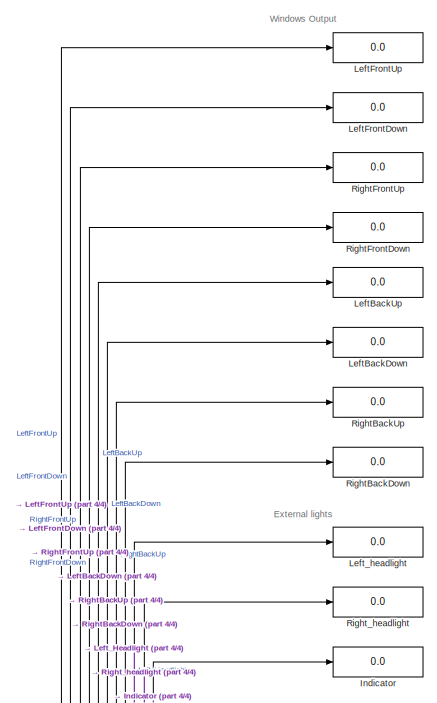
[diagram: root canvas - part 1/4, top right region]
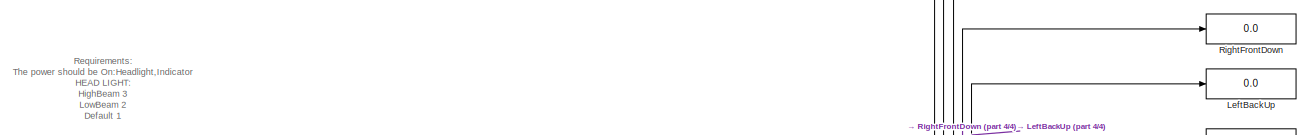
[diagram: root canvas - part 2/4, full width, top band]
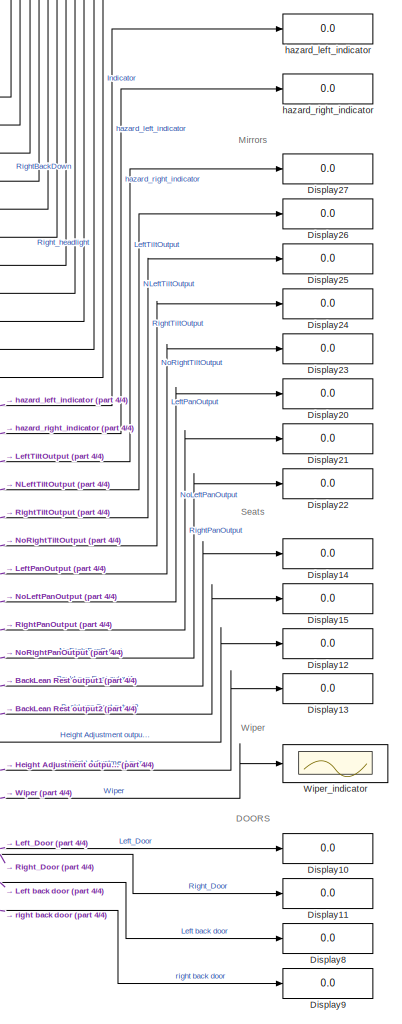
[diagram: root canvas - part 3/4, bottom right region]
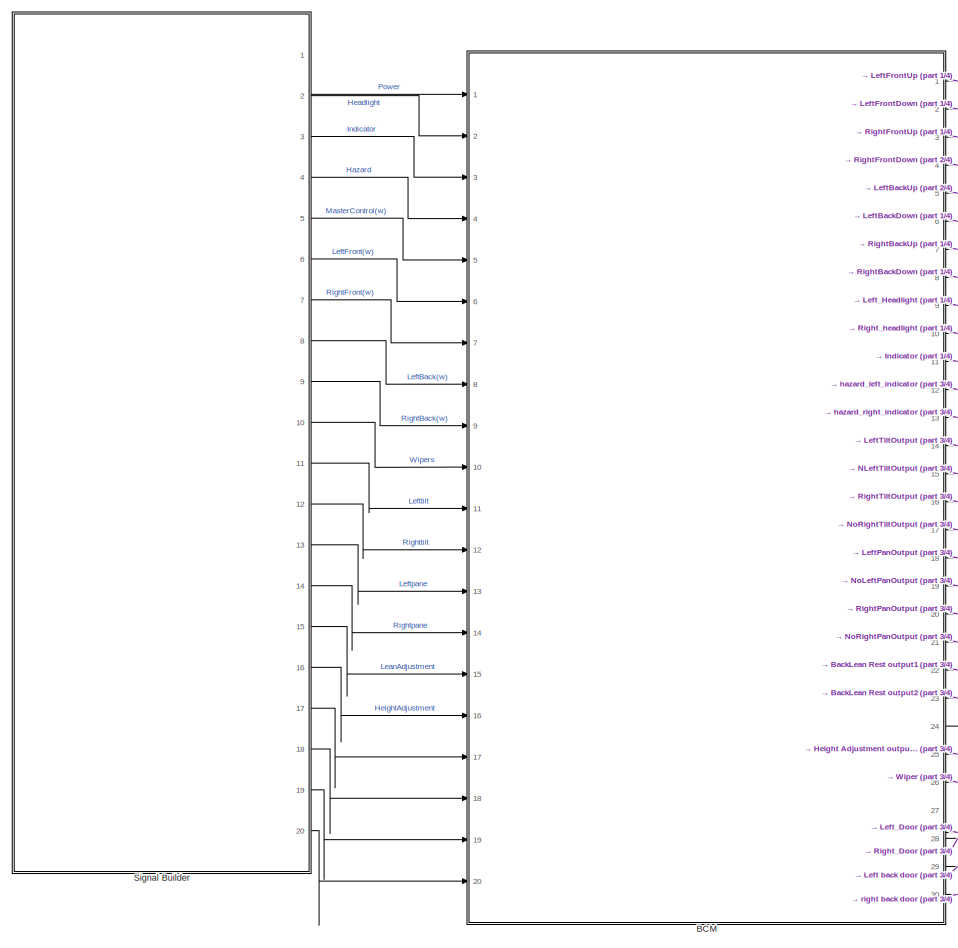
[diagram: root canvas - part 4/4, bottom center region]
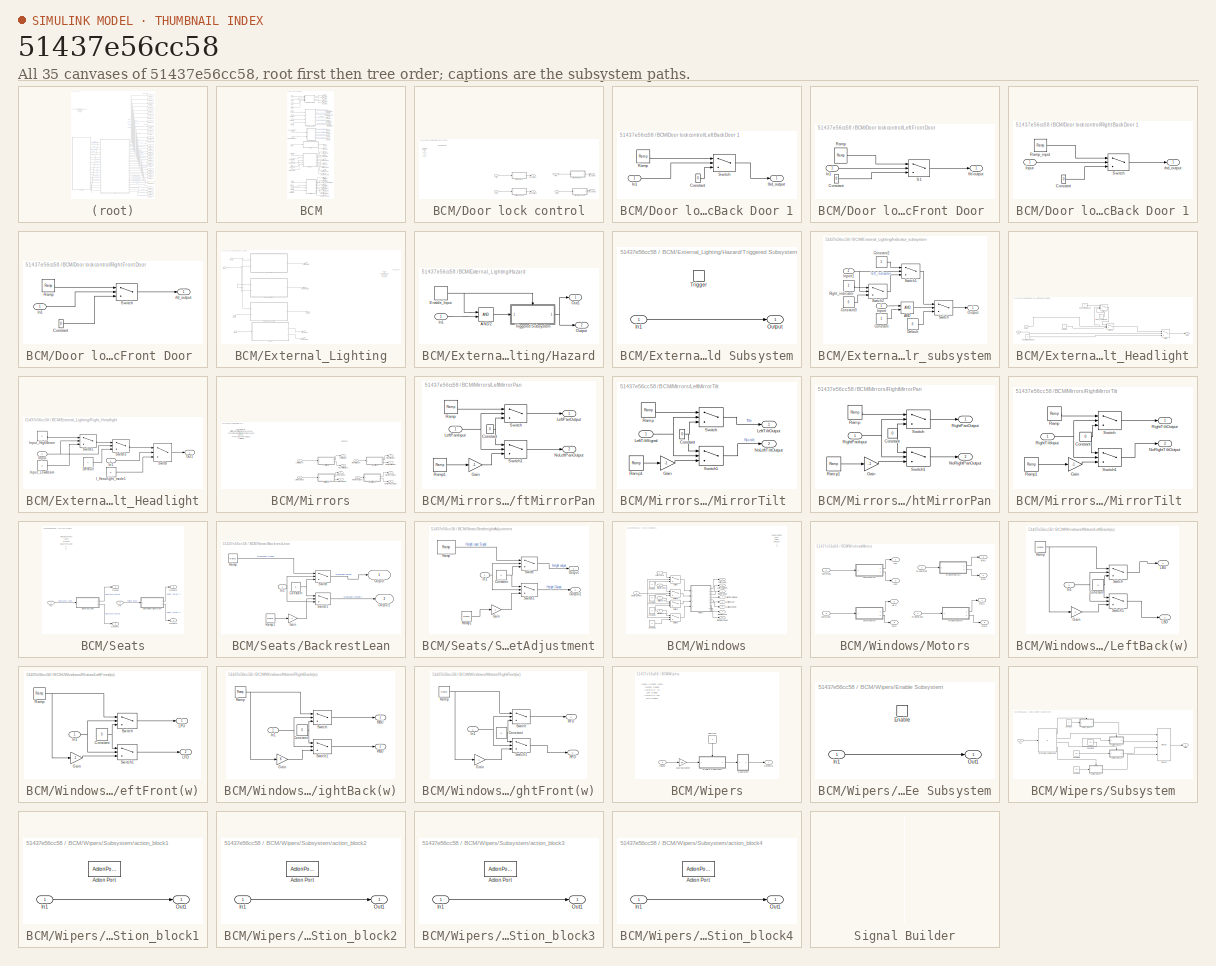
[diagram: thumbnail index - all 35 canvases of the model, root first then tree order]
MODEL slx_51437e56cc58
KIND model
CONFIG AbsTol = auto
CONFIG EnableMultiTasking = off
CONFIG FixedStep = auto
CONFIG MaxStep = auto
CONFIG MinStep = auto
CONFIG RelTol = 1e-3
CONFIG SampleTimeConstraint = Unconstrained
CONFIG Solver = VariableStepAuto
CONFIG SolverName = VariableStepAuto
CONFIG StartTime = 0.0
CONFIG StopTime = 4.0
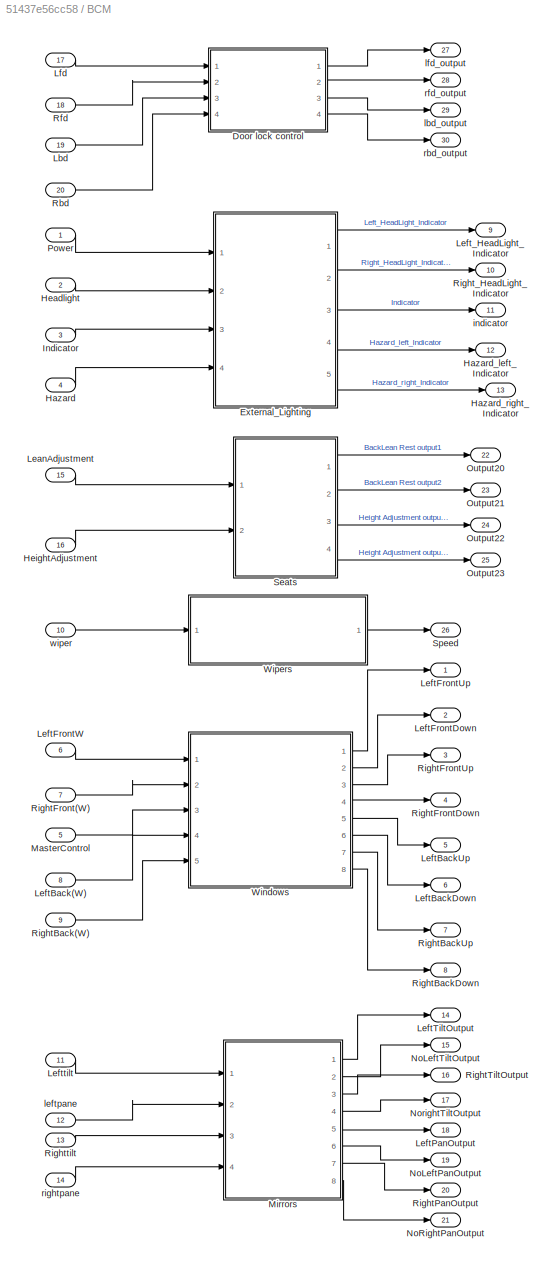
BLOCK [SubSystem] BCM
  Ports = [20, 30]
  RequestExecContextInheritance = off
BLOCK [SubSystem] BCM/Door lock control
  Ports = [4, 4]
  RequestExecContextInheritance = off
BLOCK [Inport] BCM/Door lock control/Lbd
  Port = 3
BLOCK [SubSystem] BCM/Door lock control/Left Back Door 1
  Ports = [1, 1]
  RequestExecContextInheritance = off
BLOCK [Constant] BCM/Door lock control/Left Back Door 1/Constant
  Value = 0
BLOCK [Inport] BCM/Door lock control/Left Back Door 1/In1
BLOCK [Reference] BCM/Door lock control/Left Back Door 1/Ramp  REF=simulink/Sources/Ramp
  Ports = [0, 1]
  SourceBlock = simulink/Sources/Ramp
  SourceProductBaseCode = SL
  SourceType = Ramp
BLOCK [Switch] BCM/Door lock control/Left Back Door 1/Switch
  Criteria = u2 > Threshold
  InputSameDT = off
  SaturateOnIntegerOverflow = off
BLOCK [Outport] BCM/Door lock control/Left Back Door 1/lbd_output
BLOCK [SubSystem] BCM/Door lock control/Left Front Door 
  Ports = [1, 1]
  RequestExecContextInheritance = off
BLOCK [Constant] BCM/Door lock control/Left Front Door /Constant
  Value = 0
BLOCK [Inport] BCM/Door lock control/Left Front Door /In1
BLOCK [Reference] BCM/Door lock control/Left Front Door /Ramp  REF=simulink/Sources/Ramp
  Ports = [0, 1]
  SourceBlock = simulink/Sources/Ramp
  SourceProductBaseCode = SL
  SourceType = Ramp
BLOCK [Switch] BCM/Door lock control/Left Front Door /S1
  Criteria = u2 > Threshold
  InputSameDT = off
  SaturateOnIntegerOverflow = off
BLOCK [Outport] BCM/Door lock control/Left Front Door /lfd output
BLOCK [Inport] BCM/Door lock control/Lfd
BLOCK [Inport] BCM/Door lock control/Rbd
  Port = 4
BLOCK [Inport] BCM/Door lock control/Rfd
  Port = 2
BLOCK [SubSystem] BCM/Door lock control/Right Back Door 1
  Ports = [1, 1]
  RequestExecContextInheritance = off
BLOCK [Constant] BCM/Door lock control/Right Back Door 1/Constant
  Value = 0
BLOCK [Inport] BCM/Door lock control/Right Back Door 1/Input
BLOCK [Reference] BCM/Door lock control/Right Back Door 1/Ramp_input  REF=simulink/Sources/Ramp
  Ports = [0, 1]
  SourceBlock = simulink/Sources/Ramp
  SourceProductBaseCode = SL
  SourceType = Ramp
BLOCK [Switch] BCM/Door lock control/Right Back Door 1/Switch
  Criteria = u2 > Threshold
  InputSameDT = off
  SaturateOnIntegerOverflow = off
BLOCK [Outport] BCM/Door lock control/Right Back Door 1/rbd_output
BLOCK [SubSystem] BCM/Door lock control/Right Front Door 
  Ports = [1, 1]
  RequestExecContextInheritance = off
BLOCK [Constant] BCM/Door lock control/Right Front Door /Constant
  Value = 0
BLOCK [Inport] BCM/Door lock control/Right Front Door /In1
BLOCK [Reference] BCM/Door lock control/Right Front Door /Ramp  REF=simulink/Sources/Ramp
  Ports = [0, 1]
  SourceBlock = simulink/Sources/Ramp
  SourceProductBaseCode = SL
  SourceType = Ramp
BLOCK [Switch] BCM/Door lock control/Right Front Door /Switch
  Criteria = u2 > Threshold
  InputSameDT = off
  SaturateOnIntegerOverflow = off
BLOCK [Outport] BCM/Door lock control/Right Front Door /rfd_output
BLOCK [Outport] BCM/Door lock control/lbd_output
  Port = 3
BLOCK [Outport] BCM/Door lock control/lfd_output
BLOCK [Outport] BCM/Door lock control/rbd_output
  Port = 4
BLOCK [Outport] BCM/Door lock control/rfd_output
  Port = 2
BLOCK [SubSystem] BCM/External_Lighting
  Ports = [4, 5]
  RequestExecContextInheritance = off
BLOCK [SubSystem] BCM/External_Lighting/Hazard
  Ports = [1, 2]
  RequestExecContextInheritance = off
BLOCK [Logic] BCM/External_Lighting/Hazard/AND2
  AllPortsSameDT = off
  IconShape = distinctive
  OutDataTypeStr = boolean
  Ports = [2, 1]
BLOCK [DiscretePulseGenerator] BCM/External_Lighting/Hazard/Enable_Input
  Period = 1
  Ports = [0, 1]
  PulseType = Time based
  PulseWidth = 50
BLOCK [Inport] BCM/External_Lighting/Hazard/In1
BLOCK [Outport] BCM/External_Lighting/Hazard/Out1
  VectorParamsAs1DForOutWhenUnconnected = off
BLOCK [Outport] BCM/External_Lighting/Hazard/Output
  Port = 2
BLOCK [SubSystem] BCM/External_Lighting/Hazard/Triggered Subsystem
  Ports = [1, 1, 0, 1]
  RequestExecContextInheritance = off
  TreatAsAtomicUnit = on
BLOCK [Inport] BCM/External_Lighting/Hazard/Triggered Subsystem/In1
BLOCK [Outport] BCM/External_Lighting/Hazard/Triggered Subsystem/Output
BLOCK [TriggerPort] BCM/External_Lighting/Hazard/Triggered Subsystem/Trigger
  Ports = []
  StatesWhenEnabling = held
  TriggerType = either
  VariantControl = Variant
BLOCK [Outport] BCM/External_Lighting/Hazard_Right
  Port = 5
BLOCK [Outport] BCM/External_Lighting/Indicator
  Port = 3
  VectorParamsAs1DForOutWhenUnconnected = off
BLOCK [SubSystem] BCM/External_Lighting/Indicator_subsystem
  Ports = [2, 1]
  RequestExecContextInheritance = off
BLOCK [Logic] BCM/External_Lighting/Indicator_subsystem/AND
  AllPortsSameDT = off
  IconShape = distinctive
  OutDataTypeStr = boolean
  Ports = [2, 1]
BLOCK [Constant] BCM/External_Lighting/Indicator_subsystem/Constant
BLOCK [Constant] BCM/External_Lighting/Indicator_subsystem/Constant2
  Value = 5
BLOCK [Constant] BCM/External_Lighting/Indicator_subsystem/Constant3
  Value = 0
BLOCK [Constant] BCM/External_Lighting/Indicator_subsystem/Default
  Value = 0
BLOCK [Inport] BCM/External_Lighting/Indicator_subsystem/Inport
BLOCK [Inport] BCM/External_Lighting/Indicator_subsystem/Inport1
  Port = 2
BLOCK [Outport] BCM/External_Lighting/Indicator_subsystem/Output
  VectorParamsAs1DForOutWhenUnconnected = off
BLOCK [Constant] BCM/External_Lighting/Indicator_subsystem/Right_indicator
  Value = 3
BLOCK [Switch] BCM/External_Lighting/Indicator_subsystem/Switch
  Criteria = u2 > Threshold
  InputSameDT = off
  SaturateOnIntegerOverflow = off
BLOCK [Switch] BCM/External_Lighting/Indicator_subsystem/Switch1
  Criteria = u2 > Threshold
  InputSameDT = off
  SaturateOnIntegerOverflow = off
  Threshold = 4
BLOCK [Switch] BCM/External_Lighting/Indicator_subsystem/Switch2
  Criteria = u2 > Threshold
  InputSameDT = off
  SaturateOnIntegerOverflow = off
  Threshold = 2
BLOCK [Inport] BCM/External_Lighting/Input
  Port = 2
BLOCK [Inport] BCM/External_Lighting/Input1
BLOCK [Inport] BCM/External_Lighting/Input3
  Port = 3
BLOCK [Inport] BCM/External_Lighting/Input4
  Port = 4
BLOCK [Outport] BCM/External_Lighting/Left-Headlight
  VectorParamsAs1DForOutWhenUnconnected = off
BLOCK [SubSystem] BCM/External_Lighting/Left_Headlight
  Ports = [2, 1]
  RequestExecContextInheritance = off
BLOCK [Constant] BCM/External_Lighting/Left_Headlight/Deafult
BLOCK [Constant] BCM/External_Lighting/Left_Headlight/I_Headlight_mode1
  Value = 0
BLOCK [Inport] BCM/External_Lighting/Left_Headlight/In1
BLOCK [Inport] BCM/External_Lighting/Left_Headlight/Input
  Port = 2
BLOCK [Constant] BCM/External_Lighting/Left_Headlight/Input_HighBeam
  Value = 3
BLOCK [Constant] BCM/External_Lighting/Left_Headlight/Input_LowBeam
  Value = 2
BLOCK [Outport] BCM/External_Lighting/Left_Headlight/Out1
  VectorParamsAs1DForOutWhenUnconnected = off
BLOCK [Switch] BCM/External_Lighting/Left_Headlight/Switch
  Criteria = u2 > Threshold
  InputSameDT = off
  SaturateOnIntegerOverflow = off
BLOCK [Switch] BCM/External_Lighting/Left_Headlight/Switch1
  Criteria = u2 > Threshold
  InputSameDT = off
  SaturateOnIntegerOverflow = off
  Threshold = 2
BLOCK [Switch] BCM/External_Lighting/Left_Headlight/Switch3
  Criteria = u2 > Threshold
  InputSameDT = off
  SaturateOnIntegerOverflow = off
  Threshold = 1
BLOCK [Outport] BCM/External_Lighting/Right-Headlight
  Port = 2
  VectorParamsAs1DForOutWhenUnconnected = off
BLOCK [SubSystem] BCM/External_Lighting/Right_Headlight
  Ports = [2, 1]
  RequestExecContextInheritance = off
BLOCK [Constant] BCM/External_Lighting/Right_Headlight/Default
BLOCK [Constant] BCM/External_Lighting/Right_Headlight/I_Headlight_mode1
  Value = 0
BLOCK [Inport] BCM/External_Lighting/Right_Headlight/In1
BLOCK [Inport] BCM/External_Lighting/Right_Headlight/Input
  Port = 2
BLOCK [Constant] BCM/External_Lighting/Right_Headlight/Input_HighBeam
  Value = 3
BLOCK [Constant] BCM/External_Lighting/Right_Headlight/Input_LowBeam
  Value = 2
BLOCK [Outport] BCM/External_Lighting/Right_Headlight/Out1
  VectorParamsAs1DForOutWhenUnconnected = off
BLOCK [Switch] BCM/External_Lighting/Right_Headlight/Switch
  Criteria = u2 > Threshold
  InputSameDT = off
  SaturateOnIntegerOverflow = off
BLOCK [Switch] BCM/External_Lighting/Right_Headlight/Switch1
  Criteria = u2 > Threshold
  InputSameDT = off
  SaturateOnIntegerOverflow = off
  Threshold = 2
BLOCK [Switch] BCM/External_Lighting/Right_Headlight/Switch3
  Criteria = u2 > Threshold
  InputSameDT = off
  SaturateOnIntegerOverflow = off
  Threshold = 1
BLOCK [Outport] BCM/External_Lighting/hazard_left
  Port = 4
  VectorParamsAs1DForOutWhenUnconnected = off
BLOCK [Inport] BCM/Hazard
  Port = 4
BLOCK [Outport] BCM/Hazard_left_Indicator
  Port = 12
BLOCK [Outport] BCM/Hazard_right_Indicator
  Port = 13
BLOCK [Inport] BCM/Headlight
  Port = 2
BLOCK [Inport] BCM/HeightAdjustment
  Port = 16
BLOCK [Inport] BCM/Indicator
  Port = 3
BLOCK [Inport] BCM/Lbd
  Port = 19
BLOCK [Inport] BCM/LeanAdjustment
  Port = 15
BLOCK [Inport] BCM/LeftBack(W)
  Port = 8
BLOCK [Outport] BCM/LeftBackDown
  Port = 6
BLOCK [Outport] BCM/LeftBackUp
  Port = 5
BLOCK [Outport] BCM/LeftFrontDown
  Port = 2
BLOCK [Outport] BCM/LeftFrontUp
BLOCK [Inport] BCM/LeftFrontW
  Port = 6
BLOCK [Outport] BCM/LeftPanOutput
  Port = 18
BLOCK [Outport] BCM/LeftTiltOutput
  Port = 14
BLOCK [Outport] BCM/Left_HeadLight_Indicator
  Port = 9
BLOCK [Inport] BCM/Lefttilt
  Port = 11
BLOCK [Inport] BCM/Lfd
  Port = 17
BLOCK [Inport] BCM/MasterControl
  Port = 5
BLOCK [SubSystem] BCM/Mirrors
  Ports = [4, 8]
  RequestExecContextInheritance = off
BLOCK [SubSystem] BCM/Mirrors/LeftMirrorPan
  Ports = [1, 2]
  RequestExecContextInheritance = off
BLOCK [Constant] BCM/Mirrors/LeftMirrorPan/Constant
  Value = 0
BLOCK [Gain] BCM/Mirrors/LeftMirrorPan/Gain
  Gain = -1
BLOCK [Inport] BCM/Mirrors/LeftMirrorPan/LeftPanInput
BLOCK [Outport] BCM/Mirrors/LeftMirrorPan/LeftPanOutput
BLOCK [Outport] BCM/Mirrors/LeftMirrorPan/NoLeftPanOutput
  Port = 2
BLOCK [Reference] BCM/Mirrors/LeftMirrorPan/Ramp  REF=simulink/Sources/Ramp
  Ports = [0, 1]
  SourceBlock = simulink/Sources/Ramp
  SourceProductBaseCode = SL
  SourceType = Ramp
BLOCK [Reference] BCM/Mirrors/LeftMirrorPan/Ramp1  REF=simulink/Sources/Ramp
  Ports = [0, 1]
  SourceBlock = simulink/Sources/Ramp
  SourceProductBaseCode = SL
  SourceType = Ramp
BLOCK [Switch] BCM/Mirrors/LeftMirrorPan/Switch
  Criteria = u2 > Threshold
  InputSameDT = off
  SaturateOnIntegerOverflow = off
BLOCK [Switch] BCM/Mirrors/LeftMirrorPan/Switch1
  InputSameDT = off
  SaturateOnIntegerOverflow = off
BLOCK [SubSystem] BCM/Mirrors/LeftMirrorTilt 
  Ports = [1, 2]
  RequestExecContextInheritance = off
BLOCK [Constant] BCM/Mirrors/LeftMirrorTilt /Constant
  Value = 0
BLOCK [Gain] BCM/Mirrors/LeftMirrorTilt /Gain
  Gain = -1
BLOCK [Outport] BCM/Mirrors/LeftMirrorTilt /LeftTiltOutput
BLOCK [Inport] BCM/Mirrors/LeftMirrorTilt /LeftTiltSignal
BLOCK [Outport] BCM/Mirrors/LeftMirrorTilt /NoLeftTiltOutput
  Port = 2
BLOCK [Reference] BCM/Mirrors/LeftMirrorTilt /Ramp  REF=simulink/Sources/Ramp
  Ports = [0, 1]
  SourceBlock = simulink/Sources/Ramp
  SourceProductBaseCode = SL
  SourceType = Ramp
BLOCK [Reference] BCM/Mirrors/LeftMirrorTilt /Ramp1  REF=simulink/Sources/Ramp
  Ports = [0, 1]
  SourceBlock = simulink/Sources/Ramp
  SourceProductBaseCode = SL
  SourceType = Ramp
BLOCK [Switch] BCM/Mirrors/LeftMirrorTilt /Switch
  Criteria = u2 > Threshold
  InputSameDT = off
  SaturateOnIntegerOverflow = off
BLOCK [Switch] BCM/Mirrors/LeftMirrorTilt /Switch1
  InputSameDT = off
  SaturateOnIntegerOverflow = off
BLOCK [Outport] BCM/Mirrors/LeftPanOutput
  Port = 5
BLOCK [Inport] BCM/Mirrors/LeftPanSignal
  Port = 3
BLOCK [Outport] BCM/Mirrors/LeftTiltOutput
BLOCK [Inport] BCM/Mirrors/LeftTiltSignal
BLOCK [Outport] BCM/Mirrors/NoLeftPanOutput
  Port = 6
BLOCK [Outport] BCM/Mirrors/NoLeftTiltOutput
  Port = 2
BLOCK [Outport] BCM/Mirrors/NoRightPanOutput
  Port = 8
BLOCK [Outport] BCM/Mirrors/NoRightTiltOutput
  Port = 4
BLOCK [SubSystem] BCM/Mirrors/RightMirrorPan
  Ports = [1, 2]
  RequestExecContextInheritance = off
BLOCK [Constant] BCM/Mirrors/RightMirrorPan/Constant
  Value = 0
BLOCK [Gain] BCM/Mirrors/RightMirrorPan/Gain
  Gain = -1
BLOCK [Outport] BCM/Mirrors/RightMirrorPan/NoRightPanOutput
  Port = 2
BLOCK [Reference] BCM/Mirrors/RightMirrorPan/Ramp  REF=simulink/Sources/Ramp
  Ports = [0, 1]
  SourceBlock = simulink/Sources/Ramp
  SourceProductBaseCode = SL
  SourceType = Ramp
BLOCK [Reference] BCM/Mirrors/RightMirrorPan/Ramp1  REF=simulink/Sources/Ramp
  Ports = [0, 1]
  SourceBlock = simulink/Sources/Ramp
  SourceProductBaseCode = SL
  SourceType = Ramp
BLOCK [Inport] BCM/Mirrors/RightMirrorPan/RightPanInput
BLOCK [Outport] BCM/Mirrors/RightMirrorPan/RightPanOutput
BLOCK [Switch] BCM/Mirrors/RightMirrorPan/Switch
  Criteria = u2 > Threshold
  InputSameDT = off
  SaturateOnIntegerOverflow = off
BLOCK [Switch] BCM/Mirrors/RightMirrorPan/Switch1
  InputSameDT = off
  SaturateOnIntegerOverflow = off
BLOCK [SubSystem] BCM/Mirrors/RightMirrorTilt 
  Ports = [1, 2]
  RequestExecContextInheritance = off
BLOCK [Constant] BCM/Mirrors/RightMirrorTilt /Constant
  Value = 0
BLOCK [Gain] BCM/Mirrors/RightMirrorTilt /Gain
  Gain = -1
BLOCK [Outport] BCM/Mirrors/RightMirrorTilt /NoRightTiltOutput
  Port = 2
BLOCK [Reference] BCM/Mirrors/RightMirrorTilt /Ramp  REF=simulink/Sources/Ramp
  Ports = [0, 1]
  SourceBlock = simulink/Sources/Ramp
  SourceProductBaseCode = SL
  SourceType = Ramp
BLOCK [Reference] BCM/Mirrors/RightMirrorTilt /Ramp1  REF=simulink/Sources/Ramp
  Ports = [0, 1]
  SourceBlock = simulink/Sources/Ramp
  SourceProductBaseCode = SL
  SourceType = Ramp
BLOCK [Inport] BCM/Mirrors/RightMirrorTilt /RightTiltInput
BLOCK [Outport] BCM/Mirrors/RightMirrorTilt /RightTiltOutput
BLOCK [Switch] BCM/Mirrors/RightMirrorTilt /Switch
  Criteria = u2 > Threshold
  InputSameDT = off
  SaturateOnIntegerOverflow = off
BLOCK [Switch] BCM/Mirrors/RightMirrorTilt /Switch1
  InputSameDT = off
  SaturateOnIntegerOverflow = off
BLOCK [Outport] BCM/Mirrors/RightPanOutput
  Port = 7
BLOCK [Inport] BCM/Mirrors/RightPanSignal
  Port = 4
BLOCK [Outport] BCM/Mirrors/RightTiltOutput
  Port = 3
BLOCK [Inport] BCM/Mirrors/RightTiltSignal
  Port = 2
BLOCK [Outport] BCM/NoLeftPanOutput
  Port = 19
BLOCK [Outport] BCM/NoLeftTiltOutput
  Port = 15
BLOCK [Outport] BCM/NoRightPanOutput
  Port = 21
BLOCK [Outport] BCM/NorightTiltOutput
  Port = 17
BLOCK [Outport] BCM/Output20
  Port = 22
BLOCK [Outport] BCM/Output21
  Port = 23
BLOCK [Outport] BCM/Output22
  Port = 24
BLOCK [Outport] BCM/Output23
  Port = 25
BLOCK [Inport] BCM/Power
BLOCK [Inport] BCM/Rbd
  Port = 20
BLOCK [Inport] BCM/Rfd
  Port = 18
BLOCK [Inport] BCM/RightBack(W)
  Port = 9
BLOCK [Outport] BCM/RightBackDown
  Port = 8
BLOCK [Outport] BCM/RightBackUp
  Port = 7
BLOCK [Inport] BCM/RightFront(W)
  Port = 7
BLOCK [Outport] BCM/RightFrontDown
  Port = 4
BLOCK [Outport] BCM/RightFrontUp
  Port = 3
BLOCK [Outport] BCM/RightPanOutput
  Port = 20
BLOCK [Outport] BCM/RightTiltOutput
  Port = 16
BLOCK [Outport] BCM/Right_HeadLight_Indicator
  Port = 10
BLOCK [Inport] BCM/Righttilt
  Port = 13
BLOCK [SubSystem] BCM/Seats
  Ports = [2, 4]
  RequestExecContextInheritance = off
BLOCK [SubSystem] BCM/Seats/BackrestLean
  Ports = [1, 2]
  RequestExecContextInheritance = off
BLOCK [Constant] BCM/Seats/BackrestLean/Constant 
  Value = 0
BLOCK [Gain] BCM/Seats/BackrestLean/Gain 
  Gain = -1
BLOCK [Inport] BCM/Seats/BackrestLean/In1 
BLOCK [Outport] BCM/Seats/BackrestLean/Output 
BLOCK [Outport] BCM/Seats/BackrestLean/Output1 
  Port = 2
BLOCK [Reference] BCM/Seats/BackrestLean/Ramp   REF=simulink/Sources/Ramp
  Ports = [0, 1]
  SourceBlock = simulink/Sources/Ramp
  SourceProductBaseCode = SL
  SourceType = Ramp
BLOCK [Reference] BCM/Seats/BackrestLean/Ramp1   REF=simulink/Sources/Ramp
  Ports = [0, 1]
  SourceBlock = simulink/Sources/Ramp
  SourceProductBaseCode = SL
  SourceType = Ramp
BLOCK [Switch] BCM/Seats/BackrestLean/Switch 
  Criteria = u2 > Threshold
  InputSameDT = off
  SaturateOnIntegerOverflow = off
BLOCK [Switch] BCM/Seats/BackrestLean/Switch1 
  InputSameDT = off
  SaturateOnIntegerOverflow = off
BLOCK [Inport] BCM/Seats/In1 
BLOCK [Inport] BCM/Seats/In3 
  Port = 2
BLOCK [Outport] BCM/Seats/Output 
BLOCK [Outport] BCM/Seats/Output1 
  Port = 2
BLOCK [Outport] BCM/Seats/Output2 
  Port = 3
BLOCK [Outport] BCM/Seats/Output3 
  Port = 4
BLOCK [SubSystem] BCM/Seats/SeatheightAdjustment
  Ports = [1, 2]
  RequestExecContextInheritance = off
BLOCK [Constant] BCM/Seats/SeatheightAdjustment/Constant 
  Value = 0
BLOCK [Gain] BCM/Seats/SeatheightAdjustment/Gain 
  Gain = -1
BLOCK [Inport] BCM/Seats/SeatheightAdjustment/In1 
BLOCK [Outport] BCM/Seats/SeatheightAdjustment/Output 
BLOCK [Outport] BCM/Seats/SeatheightAdjustment/Output1 
  Port = 2
BLOCK [Reference] BCM/Seats/SeatheightAdjustment/Ramp   REF=simulink/Sources/Ramp
  Ports = [0, 1]
  SourceBlock = simulink/Sources/Ramp
  SourceProductBaseCode = SL
  SourceType = Ramp
BLOCK [Reference] BCM/Seats/SeatheightAdjustment/Ramp1   REF=simulink/Sources/Ramp
  Ports = [0, 1]
  SourceBlock = simulink/Sources/Ramp
  SourceProductBaseCode = SL
  SourceType = Ramp
BLOCK [Switch] BCM/Seats/SeatheightAdjustment/Switch 
  Criteria = u2 > Threshold
  InputSameDT = off
  SaturateOnIntegerOverflow = off
BLOCK [Switch] BCM/Seats/SeatheightAdjustment/Switch1 
  InputSameDT = off
  SaturateOnIntegerOverflow = off
BLOCK [Outport] BCM/Speed
  Port = 26
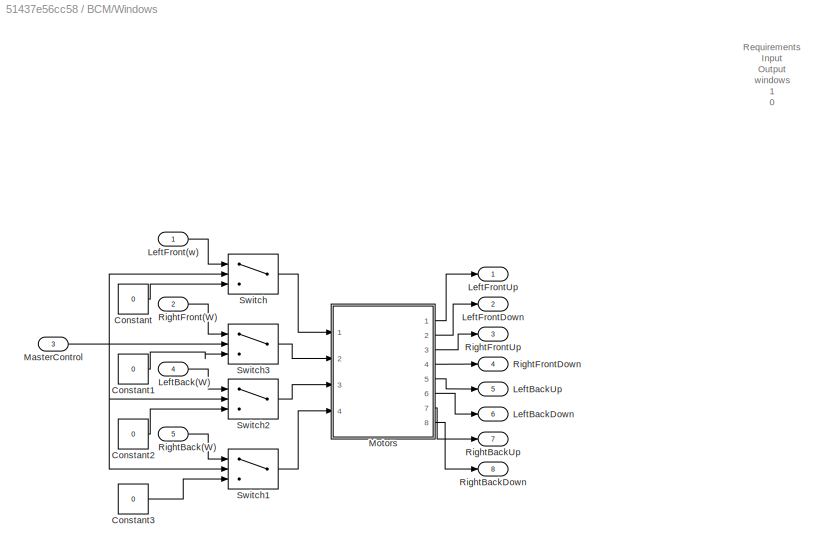
BLOCK [SubSystem] BCM/Windows
  Ports = [5, 8]
  RequestExecContextInheritance = off
BLOCK [Constant] BCM/Windows/Constant
  Value = 0
BLOCK [Constant] BCM/Windows/Constant1
  Value = 0
BLOCK [Constant] BCM/Windows/Constant2
  Value = 0
BLOCK [Constant] BCM/Windows/Constant3
  Value = 0
BLOCK [Inport] BCM/Windows/LeftBack(W)
  Port = 4
BLOCK [Outport] BCM/Windows/LeftBackDown
  Port = 6
BLOCK [Outport] BCM/Windows/LeftBackUp
  Port = 5
BLOCK [Inport] BCM/Windows/LeftFront(w)
BLOCK [Outport] BCM/Windows/LeftFrontDown
  Port = 2
BLOCK [Outport] BCM/Windows/LeftFrontUp
BLOCK [Inport] BCM/Windows/MasterControl
  Port = 3
BLOCK [SubSystem] BCM/Windows/Motors
  Ports = [4, 8]
  RequestExecContextInheritance = off
BLOCK [Outport] BCM/Windows/Motors/LBD
  Port = 6
BLOCK [Outport] BCM/Windows/Motors/LBU
  Port = 5
BLOCK [Outport] BCM/Windows/Motors/LFD
  Port = 2
BLOCK [Outport] BCM/Windows/Motors/LFU
BLOCK [Inport] BCM/Windows/Motors/LeftBack
  Port = 3
BLOCK [SubSystem] BCM/Windows/Motors/LeftBack(w)
  Ports = [1, 2]
  RequestExecContextInheritance = off
BLOCK [Constant] BCM/Windows/Motors/LeftBack(w)/Constant
  Value = 0
BLOCK [Gain] BCM/Windows/Motors/LeftBack(w)/Gain
  Gain = -1
BLOCK [Inport] BCM/Windows/Motors/LeftBack(w)/In1
BLOCK [Outport] BCM/Windows/Motors/LeftBack(w)/LBD
  Port = 2
BLOCK [Outport] BCM/Windows/Motors/LeftBack(w)/LBU
BLOCK [Reference] BCM/Windows/Motors/LeftBack(w)/Ramp  REF=simulink/Sources/Ramp
  Ports = [0, 1]
  SourceBlock = simulink/Sources/Ramp
  SourceProductBaseCode = SL
  SourceType = Ramp
BLOCK [Switch] BCM/Windows/Motors/LeftBack(w)/Switch
  Criteria = u2 > Threshold
  InputSameDT = off
  SaturateOnIntegerOverflow = off
BLOCK [Switch] BCM/Windows/Motors/LeftBack(w)/Switch1
  InputSameDT = off
  SaturateOnIntegerOverflow = off
BLOCK [Inport] BCM/Windows/Motors/LeftFront
BLOCK [SubSystem] BCM/Windows/Motors/LeftFront(w)
  Ports = [1, 2]
  RequestExecContextInheritance = off
BLOCK [Constant] BCM/Windows/Motors/LeftFront(w)/Constant
  Value = 0
BLOCK [Gain] BCM/Windows/Motors/LeftFront(w)/Gain
  Gain = -1
BLOCK [Inport] BCM/Windows/Motors/LeftFront(w)/In1
BLOCK [Outport] BCM/Windows/Motors/LeftFront(w)/LFD
  Port = 2
BLOCK [Outport] BCM/Windows/Motors/LeftFront(w)/LFU
BLOCK [Reference] BCM/Windows/Motors/LeftFront(w)/Ramp  REF=simulink/Sources/Ramp
  Ports = [0, 1]
  SourceBlock = simulink/Sources/Ramp
  SourceProductBaseCode = SL
  SourceType = Ramp
BLOCK [Switch] BCM/Windows/Motors/LeftFront(w)/Switch
  Criteria = u2 > Threshold
  InputSameDT = off
  SaturateOnIntegerOverflow = off
BLOCK [Switch] BCM/Windows/Motors/LeftFront(w)/Switch1
  InputSameDT = off
  SaturateOnIntegerOverflow = off
BLOCK [Outport] BCM/Windows/Motors/RBD
  Port = 8
BLOCK [Outport] BCM/Windows/Motors/RBU
  Port = 7
BLOCK [Outport] BCM/Windows/Motors/RFD
  Port = 4
BLOCK [Outport] BCM/Windows/Motors/RFU
  Port = 3
BLOCK [Inport] BCM/Windows/Motors/RightBack
  Port = 4
BLOCK [SubSystem] BCM/Windows/Motors/RightBack(w)
  Ports = [1, 2]
  RequestExecContextInheritance = off
BLOCK [Constant] BCM/Windows/Motors/RightBack(w)/Constant
  Value = 0
BLOCK [Gain] BCM/Windows/Motors/RightBack(w)/Gain
BLOCK [Inport] BCM/Windows/Motors/RightBack(w)/In1
BLOCK [Outport] BCM/Windows/Motors/RightBack(w)/RBD
  Port = 2
BLOCK [Outport] BCM/Windows/Motors/RightBack(w)/RBU
BLOCK [Reference] BCM/Windows/Motors/RightBack(w)/Ramp  REF=simulink/Sources/Ramp
  Ports = [0, 1]
  SourceBlock = simulink/Sources/Ramp
  SourceProductBaseCode = SL
  SourceType = Ramp
BLOCK [Switch] BCM/Windows/Motors/RightBack(w)/Switch
  Criteria = u2 > Threshold
  InputSameDT = off
  SaturateOnIntegerOverflow = off
BLOCK [Switch] BCM/Windows/Motors/RightBack(w)/Switch1
  InputSameDT = off
  SaturateOnIntegerOverflow = off
BLOCK [Inport] BCM/Windows/Motors/RightFront
  Port = 2
BLOCK [SubSystem] BCM/Windows/Motors/RightFront(w)
  Ports = [1, 2]
  RequestExecContextInheritance = off
BLOCK [Constant] BCM/Windows/Motors/RightFront(w)/Constant
  Value = 0
BLOCK [Gain] BCM/Windows/Motors/RightFront(w)/Gain
  Gain = -1
BLOCK [Inport] BCM/Windows/Motors/RightFront(w)/In1
BLOCK [Outport] BCM/Windows/Motors/RightFront(w)/RFD
  Port = 2
BLOCK [Outport] BCM/Windows/Motors/RightFront(w)/RFU
BLOCK [Reference] BCM/Windows/Motors/RightFront(w)/Ramp  REF=simulink/Sources/Ramp
  Ports = [0, 1]
  SourceBlock = simulink/Sources/Ramp
  SourceProductBaseCode = SL
  SourceType = Ramp
BLOCK [Switch] BCM/Windows/Motors/RightFront(w)/Switch
  Criteria = u2 > Threshold
  InputSameDT = off
  SaturateOnIntegerOverflow = off
BLOCK [Switch] BCM/Windows/Motors/RightFront(w)/Switch1
  InputSameDT = off
  SaturateOnIntegerOverflow = off
BLOCK [Inport] BCM/Windows/RightBack(W)
  Port = 5
BLOCK [Outport] BCM/Windows/RightBackDown
  Port = 8
BLOCK [Outport] BCM/Windows/RightBackUp
  Port = 7
BLOCK [Inport] BCM/Windows/RightFront(W)
  Port = 2
BLOCK [Outport] BCM/Windows/RightFrontDown
  Port = 4
BLOCK [Outport] BCM/Windows/RightFrontUp
  Port = 3
BLOCK [Switch] BCM/Windows/Switch
  Criteria = u2 > Threshold
  InputSameDT = off
  SaturateOnIntegerOverflow = off
BLOCK [Switch] BCM/Windows/Switch1
  Criteria = u2 > Threshold
  InputSameDT = off
  SaturateOnIntegerOverflow = off
BLOCK [Switch] BCM/Windows/Switch2
  Criteria = u2 > Threshold
  InputSameDT = off
  SaturateOnIntegerOverflow = off
BLOCK [Switch] BCM/Windows/Switch3
  Criteria = u2 > Threshold
  InputSameDT = off
  SaturateOnIntegerOverflow = off
BLOCK [SubSystem] BCM/Wipers
  Ports = [1, 1]
  RequestExecContextInheritance = off
BLOCK [SubSystem] BCM/Wipers/Enable Subsystem
  Ports = [1, 1, 1]
  RequestExecContextInheritance = off
  TreatAsAtomicUnit = on
BLOCK [EnablePort] BCM/Wipers/Enable Subsystem/Enable
  Ports = []
BLOCK [Inport] BCM/Wipers/Enable Subsystem/In1
BLOCK [Outport] BCM/Wipers/Enable Subsystem/Out1
BLOCK [Constant] BCM/Wipers/Ignition
BLOCK [Inport] BCM/Wipers/Input5
BLOCK [Outport] BCM/Wipers/Output24
BLOCK [SubSystem] BCM/Wipers/Subsystem
  Ports = [1, 1]
  RequestExecContextInheritance = off
BLOCK [Constant] BCM/Wipers/Subsystem/Constant
  Value = 0
BLOCK [Constant] BCM/Wipers/Subsystem/Constant1
  Value = 20
BLOCK [Constant] BCM/Wipers/Subsystem/Constant2
  Value = 30
BLOCK [Constant] BCM/Wipers/Subsystem/Constant3
  Value = 48
BLOCK [Inport] BCM/Wipers/Subsystem/In1
BLOCK [Merge] BCM/Wipers/Subsystem/Merge
  Inputs = 4
  Ports = [4, 1]
BLOCK [Outport] BCM/Wipers/Subsystem/Out1
BLOCK [SubSystem] BCM/Wipers/Subsystem/action_block1
  Ports = [1, 1, 0, 0, 0, 0, 0, 1]
  RequestExecContextInheritance = off
  TreatAsAtomicUnit = on
BLOCK [ActionPort] BCM/Wipers/Subsystem/action_block1/Action Port
BLOCK [Inport] BCM/Wipers/Subsystem/action_block1/In1
BLOCK [Outport] BCM/Wipers/Subsystem/action_block1/Out1
BLOCK [SubSystem] BCM/Wipers/Subsystem/action_block2
  Ports = [1, 1, 0, 0, 0, 0, 0, 1]
  RequestExecContextInheritance = off
  TreatAsAtomicUnit = on
BLOCK [ActionPort] BCM/Wipers/Subsystem/action_block2/Action Port
BLOCK [Inport] BCM/Wipers/Subsystem/action_block2/In1
BLOCK [Outport] BCM/Wipers/Subsystem/action_block2/Out1
BLOCK [SubSystem] BCM/Wipers/Subsystem/action_block3
  Ports = [1, 1, 0, 0, 0, 0, 0, 1]
  RequestExecContextInheritance = off
  TreatAsAtomicUnit = on
BLOCK [ActionPort] BCM/Wipers/Subsystem/action_block3/Action Port
BLOCK [Inport] BCM/Wipers/Subsystem/action_block3/In1
BLOCK [Outport] BCM/Wipers/Subsystem/action_block3/Out1
BLOCK [SubSystem] BCM/Wipers/Subsystem/action_block4
  Ports = [1, 1, 0, 0, 0, 0, 0, 1]
  RequestExecContextInheritance = off
  TreatAsAtomicUnit = on
BLOCK [ActionPort] BCM/Wipers/Subsystem/action_block4/Action Port
BLOCK [Inport] BCM/Wipers/Subsystem/action_block4/In1
BLOCK [Outport] BCM/Wipers/Subsystem/action_block4/Out1
BLOCK [If] BCM/Wipers/Subsystem/threshold_comparison
  ElseIfExpressions = u1<=30,u1<=50
  IfExpression = u1<=10
  Ports = [1, 4]
BLOCK [Gain] BCM/Wipers/scaling_factor
  Gain = 50
BLOCK [Outport] BCM/indicator
  Port = 11
BLOCK [Outport] BCM/lbd_output
  Port = 29
BLOCK [Inport] BCM/leftpane
  Port = 12
BLOCK [Outport] BCM/lfd_output
  Port = 27
BLOCK [Outport] BCM/rbd_output
  Port = 30
BLOCK [Outport] BCM/rfd_output
  Port = 28
BLOCK [Inport] BCM/rightpane
  Port = 14
BLOCK [Inport] BCM/wiper
  Port = 10
BLOCK [Display] Display10
  Decimation = 1
  Ports = [1]
BLOCK [Display] Display11
  Decimation = 1
  Ports = [1]
BLOCK [Display] Display12
  Decimation = 1
  Ports = [1]
BLOCK [Display] Display13
  Decimation = 1
  Ports = [1]
BLOCK [Display] Display14
  Decimation = 1
  Ports = [1]
BLOCK [Display] Display15
  Decimation = 1
  Ports = [1]
BLOCK [Display] Display20
  Decimation = 1
  Ports = [1]
BLOCK [Display] Display21
  Decimation = 1
  Ports = [1]
BLOCK [Display] Display22
  Decimation = 1
  Ports = [1]
BLOCK [Display] Display23
  Decimation = 1
  Ports = [1]
BLOCK [Display] Display24
  Decimation = 1
  Ports = [1]
BLOCK [Display] Display25
  Decimation = 1
  Ports = [1]
BLOCK [Display] Display26
  Decimation = 1
  Ports = [1]
BLOCK [Display] Display27
  Decimation = 1
  Ports = [1]
BLOCK [Display] Display8
  Decimation = 1
  Ports = [1]
BLOCK [Display] Display9
  Decimation = 1
  Ports = [1]
BLOCK [Display] Indicator
  Decimation = 1
  Ports = [1]
BLOCK [Display] LeftBackDown
  Decimation = 1
  Ports = [1]
BLOCK [Display] LeftBackUp
  Decimation = 1
  Ports = [1]
BLOCK [Display] LeftFrontDown
  Decimation = 1
  Ports = [1]
BLOCK [Display] LeftFrontUp
  Decimation = 1
  Ports = [1]
BLOCK [Display] Left_headlight
  Decimation = 1
  Ports = [1]
BLOCK [Display] RightBackDown
  Decimation = 1
  Ports = [1]
BLOCK [Display] RightBackUp
  Decimation = 1
  Ports = [1]
BLOCK [Display] RightFrontDown
  Decimation = 1
  Ports = [1]
BLOCK [Display] RightFrontUp
  Decimation = 1
  Ports = [1]
BLOCK [Display] Right_headlight
  Decimation = 1
  Ports = [1]
BLOCK [SubSystem] Signal Builder
  ClipboardFcn = sigbuilder_block('clipboard');
  CloseFcn = sigbuilder_block('close');
  ContinueFcn = sigbuilder_block('continue');
  CopyFcn = sigbuilder_block('copy');
  DeleteFcn = sigbuilder_block('delete');
  LoadFcn = sigbuilder_block('load');
  MaskHideContents = on
  ModelCloseFcn = sigbuilder_block('modelClose');
  NameChangeFcn = sigbuilder_block('namechange');
  OpenFcn = sigbuilder_block('open',[7.5 30.75 1011 481.5 ]);
  PauseFcn = sigbuilder_block('pause');
  Ports = [0, 20]
  PreSaveFcn = sigbuilder_block('preSave');
  RequestExecContextInheritance = off
  StartFcn = sigbuilder_block('start');
  StopFcn = sigbuilder_block('stop');
  Tag = STV Subsys
BLOCK [Demux] Signal Builder/Demux
  DisplayOption = none
  Outputs = 20
  Ports = [1, 20]
  Tag = STV Demux
BLOCK [FromWorkspace] Signal Builder/FromWs
  Tag = STV FromWs
  VariableName = tuvar
BLOCK [Outport] Signal Builder/Hazard
  Port = 4
  Tag = STV Outport
  VectorParamsAs1DForOutWhenUnconnected = off
BLOCK [Outport] Signal Builder/Headlight
  Port = 2
  Tag = STV Outport
  VectorParamsAs1DForOutWhenUnconnected = off
BLOCK [Outport] Signal Builder/HeightAdjustment
  Port = 16
  Tag = STV Outport
BLOCK [Outport] Signal Builder/Lbd
  Port = 20
  Tag = STV Outport
BLOCK [Outport] Signal Builder/LeanAdjustment
  Port = 15
  Tag = STV Outport
BLOCK [Outport] Signal Builder/LeftBack(W)
  Port = 8
  Tag = STV Outport
BLOCK [Outport] Signal Builder/LeftFront(w)
  Port = 6
  Tag = STV Outport
BLOCK [Outport] Signal Builder/Lefttilt
  Port = 11
  Tag = STV Outport
BLOCK [Outport] Signal Builder/Lfd
  Port = 18
  Tag = STV Outport
BLOCK [Outport] Signal Builder/Mastercontrol(w)
  Port = 5
  Tag = STV Outport
BLOCK [Outport] Signal Builder/Power
  Tag = STV Outport
  VectorParamsAs1DForOutWhenUnconnected = off
BLOCK [Outport] Signal Builder/Rbd
  Port = 19
  Tag = STV Outport
BLOCK [Outport] Signal Builder/Rfd
  Port = 17
  Tag = STV Outport
BLOCK [Outport] Signal Builder/RightBack(W)
  Port = 9
  Tag = STV Outport
BLOCK [Outport] Signal Builder/RightFront(W)
  Port = 7
  Tag = STV Outport
BLOCK [Outport] Signal Builder/Righttilt
  Port = 13
  Tag = STV Outport
BLOCK [Outport] Signal Builder/Wipers
  Port = 10
  Tag = STV Outport
BLOCK [Outport] Signal Builder/indicator
  Port = 3
  Tag = STV Outport
  VectorParamsAs1DForOutWhenUnconnected = off
BLOCK [Outport] Signal Builder/leftpane
  Port = 12
  Tag = STV Outport
BLOCK [Outport] Signal Builder/rightpane
  Port = 14
  Tag = STV Outport
BLOCK [Scope] Wiper_indicator
  Floating = off
  NumInputPorts = 1
  Ports = [1]
  ScopeSpecificationString = Simulink.scopes.TimeScopeBlockCfg('CurrentConfiguration', extmgr.ConfigurationSet(extmgr.Configuration('Core','General UI',true),extmgr.Configuration('Core','Source UI',true),extmgr.Configuration('Sources','WiredSimulink',true),extmgr.Configuration('Visuals','Time Domain',true,'SerializedDisplays',{struct('MinYLimReal','-1.24988','MaxYLimReal','1.24955','YLabelReal','','MinYLimMag','0.00000','MaxY...<+1326ch>
BLOCK [Display] hazard_left_indicator
  Decimation = 1
  Ports = [1]
BLOCK [Display] hazard_right_indicator
  Decimation = 1
  Ports = [1]
ANNOTATION (root): DOORS
ANNOTATION (root): External lights
ANNOTATION (root): Mirrors
ANNOTATION (root): Requirements: The power should be On:Headlight,Indicator HEAD LIGHT: HighBeam 3 LowBeam 2 Default 1 INDICATOR: Left 5 Right 3 Default
ANNOTATION (root): Seats
ANNOTATION (root): Windows Output
ANNOTATION (root): Wiper
ANNOTATION BCM/Door lock control: Requirements
ANNOTATION BCM/Door lock control: DOORS Output 0 close 1 open
ANNOTATION BCM/External_Lighting: Requirements
ANNOTATION BCM/External_Lighting: Power On Headlight Inputs High Beam :3 Low Beam:2 Power On Indicators Inputs: Left indicator:5 Right Indicator:3 Power Off Head light and Indicator are off Hazard Indicator Blink with dealy
ANNOTATION BCM/Mirrors: Requirements: To tilt left and right mirror (vertical up and down) To pan left and right mirror (Horizontal movement) INPUTS: 4 Push buttons for 4 controls i.e., Left mirror Tilt Left mirror Pan Right mirror Tilt Right mirror Pan Test Plan: INPUT Expected Output Left Mirror: Tilt=1 Tilt=0 Tilt vertically (1) No tilt. (0) Left Mirror: Pan=1 Pan=0 Move Horizontally (1) No movement. (0) Right Mirror:...<+110ch>
ANNOTATION BCM/Mirrors: MIRRORS
ANNOTATION BCM/Seats: Requirements Input Output BackrestLean 1 0 -1 Invalid Off On Seatheight Adjustment 1 0 -1 On Off Invalid
ANNOTATION BCM/Windows: Requirements Input Output windows 1 0 -1 Invalid Off On Master can take the entire control on/off
ANNOTATION BCM/Wipers: Inputs (Sensor Input) Output Speed Value < 10 Low Speed Value <=30 Mid Speed Value <=50 High Speed Value >50 Very High Speed
LINE BCM/Door lock control/Lbd:1 -> BCM/Door lock control/Left Back Door 1:1
LINE BCM/Door lock control/Left Back Door 1/Constant:1 -> BCM/Door lock control/Left Back Door 1/Switch:3
LINE BCM/Door lock control/Left Back Door 1/In1:1 -> BCM/Door lock control/Left Back Door 1/Switch:2
LINE BCM/Door lock control/Left Back Door 1/Ramp:1 -> BCM/Door lock control/Left Back Door 1/Switch:1
LINE BCM/Door lock control/Left Back Door 1/Switch:1 -> BCM/Door lock control/Left Back Door 1/lbd_output:1
LINE BCM/Door lock control/Left Back Door 1:1 -> BCM/Door lock control/lbd_output:1
LINE BCM/Door lock control/Left Front Door /Constant:1 -> BCM/Door lock control/Left Front Door /S1:3
LINE BCM/Door lock control/Left Front Door /In1:1 -> BCM/Door lock control/Left Front Door /S1:2
LINE BCM/Door lock control/Left Front Door /Ramp:1 -> BCM/Door lock control/Left Front Door /S1:1
LINE BCM/Door lock control/Left Front Door /S1:1 -> BCM/Door lock control/Left Front Door /lfd output:1
LINE BCM/Door lock control/Left Front Door :1 -> BCM/Door lock control/lfd_output:1
LINE BCM/Door lock control/Lfd:1 -> BCM/Door lock control/Left Front Door :1
LINE BCM/Door lock control/Rbd:1 -> BCM/Door lock control/Right Back Door 1:1
LINE BCM/Door lock control/Rfd:1 -> BCM/Door lock control/Right Front Door :1
LINE BCM/Door lock control/Right Back Door 1/Constant:1 -> BCM/Door lock control/Right Back Door 1/Switch:3
LINE BCM/Door lock control/Right Back Door 1/Input:1 -> BCM/Door lock control/Right Back Door 1/Switch:2
LINE BCM/Door lock control/Right Back Door 1/Ramp_input:1 -> BCM/Door lock control/Right Back Door 1/Switch:1
LINE BCM/Door lock control/Right Back Door 1/Switch:1 -> BCM/Door lock control/Right Back Door 1/rbd_output:1
LINE BCM/Door lock control/Right Back Door 1:1 -> BCM/Door lock control/rbd_output:1
LINE BCM/Door lock control/Right Front Door /Constant:1 -> BCM/Door lock control/Right Front Door /Switch:3
LINE BCM/Door lock control/Right Front Door /In1:1 -> BCM/Door lock control/Right Front Door /Switch:2
LINE BCM/Door lock control/Right Front Door /Ramp:1 -> BCM/Door lock control/Right Front Door /Switch:1
LINE BCM/Door lock control/Right Front Door /Switch:1 -> BCM/Door lock control/Right Front Door /rfd_output:1
LINE BCM/Door lock control/Right Front Door :1 -> BCM/Door lock control/rfd_output:1
LINE BCM/Door lock control:1 -> BCM/lfd_output:1
LINE BCM/Door lock control:2 -> BCM/rfd_output:1
LINE BCM/Door lock control:3 -> BCM/lbd_output:1
LINE BCM/Door lock control:4 -> BCM/rbd_output:1
LINE BCM/External_Lighting/Hazard/AND2:1 -> BCM/External_Lighting/Hazard/Triggered Subsystem:1
NET BCM/External_Lighting/Hazard/Enable_Input:1 -> BCM/External_Lighting/Hazard/AND2:1, BCM/External_Lighting/Hazard/Triggered Subsystem:trigger
LINE BCM/External_Lighting/Hazard/In1:1 -> BCM/External_Lighting/Hazard/AND2:2
LINE BCM/External_Lighting/Hazard/Triggered Subsystem/In1:1 -> BCM/External_Lighting/Hazard/Triggered Subsystem/Output:1
NET BCM/External_Lighting/Hazard/Triggered Subsystem:1 -> BCM/External_Lighting/Hazard/Out1:1, BCM/External_Lighting/Hazard/Output:1
LINE BCM/External_Lighting/Hazard:1 -> BCM/External_Lighting/hazard_left:1
LINE BCM/External_Lighting/Hazard:2 -> BCM/External_Lighting/Hazard_Right:1
LINE BCM/External_Lighting/Indicator_subsystem/AND:1 -> BCM/External_Lighting/Indicator_subsystem/Switch:2
LINE BCM/External_Lighting/Indicator_subsystem/Constant2:1 -> BCM/External_Lighting/Indicator_subsystem/Switch1:1
LINE BCM/External_Lighting/Indicator_subsystem/Constant3:1 -> BCM/External_Lighting/Indicator_subsystem/Switch2:3
LINE BCM/External_Lighting/Indicator_subsystem/Constant:1 -> BCM/External_Lighting/Indicator_subsystem/AND:2
LINE BCM/External_Lighting/Indicator_subsystem/Default:1 -> BCM/External_Lighting/Indicator_subsystem/Switch:3
NET BCM/External_Lighting/Indicator_subsystem/Inport1:1 -> BCM/External_Lighting/Indicator_subsystem/Switch1:2, BCM/External_Lighting/Indicator_subsystem/Switch2:2
LINE BCM/External_Lighting/Indicator_subsystem/Inport:1 -> BCM/External_Lighting/Indicator_subsystem/AND:1
LINE BCM/External_Lighting/Indicator_subsystem/Right_indicator:1 -> BCM/External_Lighting/Indicator_subsystem/Switch2:1
LINE BCM/External_Lighting/Indicator_subsystem/Switch1:1 -> BCM/External_Lighting/Indicator_subsystem/Switch:1
LINE BCM/External_Lighting/Indicator_subsystem/Switch2:1 -> BCM/External_Lighting/Indicator_subsystem/Switch1:3
LINE BCM/External_Lighting/Indicator_subsystem/Switch:1 -> BCM/External_Lighting/Indicator_subsystem/Output:1
LINE BCM/External_Lighting/Indicator_subsystem:1 -> BCM/External_Lighting/Indicator:1
NET BCM/External_Lighting/Input1:1 -> BCM/External_Lighting/Indicator_subsystem:1, BCM/External_Lighting/Left_Headlight:1, BCM/External_Lighting/Right_Headlight:1
LINE BCM/External_Lighting/Input3:1 -> BCM/External_Lighting/Indicator_subsystem:2
LINE BCM/External_Lighting/Input4:1 -> BCM/External_Lighting/Hazard:1
NET BCM/External_Lighting/Input:1 -> BCM/External_Lighting/Left_Headlight:2, BCM/External_Lighting/Right_Headlight:2
LINE BCM/External_Lighting/Left_Headlight/Deafult:1 -> BCM/External_Lighting/Left_Headlight/Switch3:3
LINE BCM/External_Lighting/Left_Headlight/I_Headlight_mode1:1 -> BCM/External_Lighting/Left_Headlight/Switch:3
LINE BCM/External_Lighting/Left_Headlight/In1:1 -> BCM/External_Lighting/Left_Headlight/Switch:2
NET BCM/External_Lighting/Left_Headlight/Input:1 -> BCM/External_Lighting/Left_Headlight/Switch1:2, BCM/External_Lighting/Left_Headlight/Switch3:2
LINE BCM/External_Lighting/Left_Headlight/Input_HighBeam:1 -> BCM/External_Lighting/Left_Headlight/Switch1:1
LINE BCM/External_Lighting/Left_Headlight/Input_LowBeam:1 -> BCM/External_Lighting/Left_Headlight/Switch1:3
LINE BCM/External_Lighting/Left_Headlight/Switch1:1 -> BCM/External_Lighting/Left_Headlight/Switch3:1
LINE BCM/External_Lighting/Left_Headlight/Switch3:1 -> BCM/External_Lighting/Left_Headlight/Switch:1
LINE BCM/External_Lighting/Left_Headlight/Switch:1 -> BCM/External_Lighting/Left_Headlight/Out1:1
LINE BCM/External_Lighting/Left_Headlight:1 -> BCM/External_Lighting/Left-Headlight:1
LINE BCM/External_Lighting/Right_Headlight/Default:1 -> BCM/External_Lighting/Right_Headlight/Switch3:3
LINE BCM/External_Lighting/Right_Headlight/I_Headlight_mode1:1 -> BCM/External_Lighting/Right_Headlight/Switch:3
LINE BCM/External_Lighting/Right_Headlight/In1:1 -> BCM/External_Lighting/Right_Headlight/Switch:2
NET BCM/External_Lighting/Right_Headlight/Input:1 -> BCM/External_Lighting/Right_Headlight/Switch1:2, BCM/External_Lighting/Right_Headlight/Switch3:2
LINE BCM/External_Lighting/Right_Headlight/Input_HighBeam:1 -> BCM/External_Lighting/Right_Headlight/Switch1:1
LINE BCM/External_Lighting/Right_Headlight/Input_LowBeam:1 -> BCM/External_Lighting/Right_Headlight/Switch1:3
LINE BCM/External_Lighting/Right_Headlight/Switch1:1 -> BCM/External_Lighting/Right_Headlight/Switch3:1
LINE BCM/External_Lighting/Right_Headlight/Switch3:1 -> BCM/External_Lighting/Right_Headlight/Switch:1
LINE BCM/External_Lighting/Right_Headlight/Switch:1 -> BCM/External_Lighting/Right_Headlight/Out1:1
LINE BCM/External_Lighting/Right_Headlight:1 -> BCM/External_Lighting/Right-Headlight:1
LINE BCM/External_Lighting:1 -> BCM/Left_HeadLight_Indicator:1
LINE BCM/External_Lighting:2 -> BCM/Right_HeadLight_Indicator:1
LINE BCM/External_Lighting:3 -> BCM/indicator:1
LINE BCM/External_Lighting:4 -> BCM/Hazard_left_Indicator:1
LINE BCM/External_Lighting:5 -> BCM/Hazard_right_Indicator:1
LINE BCM/Hazard:1 -> BCM/External_Lighting:4
LINE BCM/Headlight:1 -> BCM/External_Lighting:2
LINE BCM/HeightAdjustment:1 -> BCM/Seats:2
LINE BCM/Indicator:1 -> BCM/External_Lighting:3
LINE BCM/Lbd:1 -> BCM/Door lock control:3
LINE BCM/LeanAdjustment:1 -> BCM/Seats:1
LINE BCM/LeftBack(W):1 -> BCM/Windows:4
LINE BCM/LeftFrontW:1 -> BCM/Windows:1
LINE BCM/Lefttilt:1 -> BCM/Mirrors:1
LINE BCM/Lfd:1 -> BCM/Door lock control:1
LINE BCM/MasterControl:1 -> BCM/Windows:3
NET BCM/Mirrors/LeftMirrorPan/Constant:1 -> BCM/Mirrors/LeftMirrorPan/Switch1:1, BCM/Mirrors/LeftMirrorPan/Switch:3
LINE BCM/Mirrors/LeftMirrorPan/Gain:1 -> BCM/Mirrors/LeftMirrorPan/Switch1:3
NET BCM/Mirrors/LeftMirrorPan/LeftPanInput:1 -> BCM/Mirrors/LeftMirrorPan/Switch1:2, BCM/Mirrors/LeftMirrorPan/Switch:2
LINE BCM/Mirrors/LeftMirrorPan/Ramp1:1 -> BCM/Mirrors/LeftMirrorPan/Gain:1
LINE BCM/Mirrors/LeftMirrorPan/Ramp:1 -> BCM/Mirrors/LeftMirrorPan/Switch:1
LINE BCM/Mirrors/LeftMirrorPan/Switch1:1 -> BCM/Mirrors/LeftMirrorPan/NoLeftPanOutput:1
LINE BCM/Mirrors/LeftMirrorPan/Switch:1 -> BCM/Mirrors/LeftMirrorPan/LeftPanOutput:1
LINE BCM/Mirrors/LeftMirrorPan:1 -> BCM/Mirrors/LeftPanOutput:1
LINE BCM/Mirrors/LeftMirrorPan:2 -> BCM/Mirrors/NoLeftPanOutput:1
NET BCM/Mirrors/LeftMirrorTilt /Constant:1 -> BCM/Mirrors/LeftMirrorTilt /Switch1:1, BCM/Mirrors/LeftMirrorTilt /Switch:3
LINE BCM/Mirrors/LeftMirrorTilt /Gain:1 -> BCM/Mirrors/LeftMirrorTilt /Switch1:3
NET BCM/Mirrors/LeftMirrorTilt /LeftTiltSignal:1 -> BCM/Mirrors/LeftMirrorTilt /Switch1:2, BCM/Mirrors/LeftMirrorTilt /Switch:2
LINE BCM/Mirrors/LeftMirrorTilt /Ramp1:1 -> BCM/Mirrors/LeftMirrorTilt /Gain:1
LINE BCM/Mirrors/LeftMirrorTilt /Ramp:1 -> BCM/Mirrors/LeftMirrorTilt /Switch:1
LINE BCM/Mirrors/LeftMirrorTilt /Switch1:1 -> BCM/Mirrors/LeftMirrorTilt /NoLeftTiltOutput:1
LINE BCM/Mirrors/LeftMirrorTilt /Switch:1 -> BCM/Mirrors/LeftMirrorTilt /LeftTiltOutput:1
LINE BCM/Mirrors/LeftMirrorTilt :1 -> BCM/Mirrors/LeftTiltOutput:1
LINE BCM/Mirrors/LeftMirrorTilt :2 -> BCM/Mirrors/NoLeftTiltOutput:1
LINE BCM/Mirrors/LeftPanSignal:1 -> BCM/Mirrors/LeftMirrorPan:1
LINE BCM/Mirrors/LeftTiltSignal:1 -> BCM/Mirrors/LeftMirrorTilt :1
NET BCM/Mirrors/RightMirrorPan/Constant:1 -> BCM/Mirrors/RightMirrorPan/Switch1:1, BCM/Mirrors/RightMirrorPan/Switch:3
LINE BCM/Mirrors/RightMirrorPan/Gain:1 -> BCM/Mirrors/RightMirrorPan/Switch1:3
LINE BCM/Mirrors/RightMirrorPan/Ramp1:1 -> BCM/Mirrors/RightMirrorPan/Gain:1
LINE BCM/Mirrors/RightMirrorPan/Ramp:1 -> BCM/Mirrors/RightMirrorPan/Switch:1
NET BCM/Mirrors/RightMirrorPan/RightPanInput:1 -> BCM/Mirrors/RightMirrorPan/Switch1:2, BCM/Mirrors/RightMirrorPan/Switch:2
LINE BCM/Mirrors/RightMirrorPan/Switch1:1 -> BCM/Mirrors/RightMirrorPan/NoRightPanOutput:1
LINE BCM/Mirrors/RightMirrorPan/Switch:1 -> BCM/Mirrors/RightMirrorPan/RightPanOutput:1
LINE BCM/Mirrors/RightMirrorPan:1 -> BCM/Mirrors/RightPanOutput:1
LINE BCM/Mirrors/RightMirrorPan:2 -> BCM/Mirrors/NoRightPanOutput:1
NET BCM/Mirrors/RightMirrorTilt /Constant:1 -> BCM/Mirrors/RightMirrorTilt /Switch1:1, BCM/Mirrors/RightMirrorTilt /Switch:3
LINE BCM/Mirrors/RightMirrorTilt /Gain:1 -> BCM/Mirrors/RightMirrorTilt /Switch1:3
LINE BCM/Mirrors/RightMirrorTilt /Ramp1:1 -> BCM/Mirrors/RightMirrorTilt /Gain:1
LINE BCM/Mirrors/RightMirrorTilt /Ramp:1 -> BCM/Mirrors/RightMirrorTilt /Switch:1
NET BCM/Mirrors/RightMirrorTilt /RightTiltInput:1 -> BCM/Mirrors/RightMirrorTilt /Switch1:2, BCM/Mirrors/RightMirrorTilt /Switch:2
LINE BCM/Mirrors/RightMirrorTilt /Switch1:1 -> BCM/Mirrors/RightMirrorTilt /NoRightTiltOutput:1
LINE BCM/Mirrors/RightMirrorTilt /Switch:1 -> BCM/Mirrors/RightMirrorTilt /RightTiltOutput:1
LINE BCM/Mirrors/RightMirrorTilt :1 -> BCM/Mirrors/RightTiltOutput:1
LINE BCM/Mirrors/RightMirrorTilt :2 -> BCM/Mirrors/NoRightTiltOutput:1
LINE BCM/Mirrors/RightPanSignal:1 -> BCM/Mirrors/RightMirrorPan:1
LINE BCM/Mirrors/RightTiltSignal:1 -> BCM/Mirrors/RightMirrorTilt :1
LINE BCM/Mirrors:1 -> BCM/LeftTiltOutput:1
LINE BCM/Mirrors:2 -> BCM/NoLeftTiltOutput:1
LINE BCM/Mirrors:3 -> BCM/RightTiltOutput:1
LINE BCM/Mirrors:4 -> BCM/NorightTiltOutput:1
LINE BCM/Mirrors:5 -> BCM/LeftPanOutput:1
LINE BCM/Mirrors:6 -> BCM/NoLeftPanOutput:1
LINE BCM/Mirrors:7 -> BCM/RightPanOutput:1
LINE BCM/Mirrors:8 -> BCM/NoRightPanOutput:1
LINE BCM/Power:1 -> BCM/External_Lighting:1
LINE BCM/Rbd:1 -> BCM/Door lock control:4
LINE BCM/Rfd:1 -> BCM/Door lock control:2
LINE BCM/RightBack(W):1 -> BCM/Windows:5
LINE BCM/RightFront(W):1 -> BCM/Windows:2
LINE BCM/Righttilt:1 -> BCM/Mirrors:3
NET BCM/Seats/BackrestLean/Constant :1 -> BCM/Seats/BackrestLean/Switch :3, BCM/Seats/BackrestLean/Switch1 :1
LINE BCM/Seats/BackrestLean/Gain :1 -> BCM/Seats/BackrestLean/Switch1 :3
NET BCM/Seats/BackrestLean/In1 :1 -> BCM/Seats/BackrestLean/Switch :2, BCM/Seats/BackrestLean/Switch1 :2
LINE BCM/Seats/BackrestLean/Ramp :1 -> BCM/Seats/BackrestLean/Switch :1
LINE BCM/Seats/BackrestLean/Ramp1 :1 -> BCM/Seats/BackrestLean/Gain :1
LINE BCM/Seats/BackrestLean/Switch :1 -> BCM/Seats/BackrestLean/Output :1
LINE BCM/Seats/BackrestLean/Switch1 :1 -> BCM/Seats/BackrestLean/Output1 :1
LINE BCM/Seats/BackrestLean:1 -> BCM/Seats/Output :1
LINE BCM/Seats/BackrestLean:2 -> BCM/Seats/Output1 :1
LINE BCM/Seats/In1 :1 -> BCM/Seats/BackrestLean:1
LINE BCM/Seats/In3 :1 -> BCM/Seats/SeatheightAdjustment:1
NET BCM/Seats/SeatheightAdjustment/Constant :1 -> BCM/Seats/SeatheightAdjustment/Switch :3, BCM/Seats/SeatheightAdjustment/Switch1 :1
LINE BCM/Seats/SeatheightAdjustment/Gain :1 -> BCM/Seats/SeatheightAdjustment/Switch1 :3
NET BCM/Seats/SeatheightAdjustment/In1 :1 -> BCM/Seats/SeatheightAdjustment/Switch :2, BCM/Seats/SeatheightAdjustment/Switch1 :2
LINE BCM/Seats/SeatheightAdjustment/Ramp :1 -> BCM/Seats/SeatheightAdjustment/Switch :1
LINE BCM/Seats/SeatheightAdjustment/Ramp1 :1 -> BCM/Seats/SeatheightAdjustment/Gain :1
LINE BCM/Seats/SeatheightAdjustment/Switch :1 -> BCM/Seats/SeatheightAdjustment/Output :1
LINE BCM/Seats/SeatheightAdjustment/Switch1 :1 -> BCM/Seats/SeatheightAdjustment/Output1 :1
LINE BCM/Seats/SeatheightAdjustment:1 -> BCM/Seats/Output2 :1
LINE BCM/Seats/SeatheightAdjustment:2 -> BCM/Seats/Output3 :1
LINE BCM/Seats:1 -> BCM/Output20:1
LINE BCM/Seats:2 -> BCM/Output21:1
LINE BCM/Seats:3 -> BCM/Output22:1
LINE BCM/Seats:4 -> BCM/Output23:1
LINE BCM/Windows/Constant1:1 -> BCM/Windows/Switch3:3
LINE BCM/Windows/Constant2:1 -> BCM/Windows/Switch2:3
LINE BCM/Windows/Constant3:1 -> BCM/Windows/Switch1:3
LINE BCM/Windows/Constant:1 -> BCM/Windows/Switch:3
LINE BCM/Windows/LeftBack(W):1 -> BCM/Windows/Switch2:1
LINE BCM/Windows/LeftFront(w):1 -> BCM/Windows/Switch:1
NET BCM/Windows/MasterControl:1 -> BCM/Windows/Switch1:2, BCM/Windows/Switch2:2, BCM/Windows/Switch3:2, BCM/Windows/Switch:2
NET BCM/Windows/Motors/LeftBack(w)/Constant:1 -> BCM/Windows/Motors/LeftBack(w)/Switch1:1, BCM/Windows/Motors/LeftBack(w)/Switch:3
LINE BCM/Windows/Motors/LeftBack(w)/Gain:1 -> BCM/Windows/Motors/LeftBack(w)/Switch1:3
NET BCM/Windows/Motors/LeftBack(w)/In1:1 -> BCM/Windows/Motors/LeftBack(w)/Switch1:2, BCM/Windows/Motors/LeftBack(w)/Switch:2
NET BCM/Windows/Motors/LeftBack(w)/Ramp:1 -> BCM/Windows/Motors/LeftBack(w)/Gain:1, BCM/Windows/Motors/LeftBack(w)/Switch:1
LINE BCM/Windows/Motors/LeftBack(w)/Switch1:1 -> BCM/Windows/Motors/LeftBack(w)/LBD:1
LINE BCM/Windows/Motors/LeftBack(w)/Switch:1 -> BCM/Windows/Motors/LeftBack(w)/LBU:1
LINE BCM/Windows/Motors/LeftBack(w):1 -> BCM/Windows/Motors/LBU:1
LINE BCM/Windows/Motors/LeftBack(w):2 -> BCM/Windows/Motors/LBD:1
LINE BCM/Windows/Motors/LeftBack:1 -> BCM/Windows/Motors/LeftBack(w):1
NET BCM/Windows/Motors/LeftFront(w)/Constant:1 -> BCM/Windows/Motors/LeftFront(w)/Switch1:1, BCM/Windows/Motors/LeftFront(w)/Switch:3
LINE BCM/Windows/Motors/LeftFront(w)/Gain:1 -> BCM/Windows/Motors/LeftFront(w)/Switch1:3
NET BCM/Windows/Motors/LeftFront(w)/In1:1 -> BCM/Windows/Motors/LeftFront(w)/Switch1:2, BCM/Windows/Motors/LeftFront(w)/Switch:2
NET BCM/Windows/Motors/LeftFront(w)/Ramp:1 -> BCM/Windows/Motors/LeftFront(w)/Gain:1, BCM/Windows/Motors/LeftFront(w)/Switch:1
LINE BCM/Windows/Motors/LeftFront(w)/Switch1:1 -> BCM/Windows/Motors/LeftFront(w)/LFD:1
LINE BCM/Windows/Motors/LeftFront(w)/Switch:1 -> BCM/Windows/Motors/LeftFront(w)/LFU:1
LINE BCM/Windows/Motors/LeftFront(w):1 -> BCM/Windows/Motors/LFU:1
LINE BCM/Windows/Motors/LeftFront(w):2 -> BCM/Windows/Motors/LFD:1
LINE BCM/Windows/Motors/LeftFront:1 -> BCM/Windows/Motors/LeftFront(w):1
NET BCM/Windows/Motors/RightBack(w)/Constant:1 -> BCM/Windows/Motors/RightBack(w)/Switch1:1, BCM/Windows/Motors/RightBack(w)/Switch:3
LINE BCM/Windows/Motors/RightBack(w)/Gain:1 -> BCM/Windows/Motors/RightBack(w)/Switch1:3
NET BCM/Windows/Motors/RightBack(w)/In1:1 -> BCM/Windows/Motors/RightBack(w)/Switch1:2, BCM/Windows/Motors/RightBack(w)/Switch:2
NET BCM/Windows/Motors/RightBack(w)/Ramp:1 -> BCM/Windows/Motors/RightBack(w)/Gain:1, BCM/Windows/Motors/RightBack(w)/Switch:1
LINE BCM/Windows/Motors/RightBack(w)/Switch1:1 -> BCM/Windows/Motors/RightBack(w)/RBD:1
LINE BCM/Windows/Motors/RightBack(w)/Switch:1 -> BCM/Windows/Motors/RightBack(w)/RBU:1
LINE BCM/Windows/Motors/RightBack(w):1 -> BCM/Windows/Motors/RBU:1
LINE BCM/Windows/Motors/RightBack(w):2 -> BCM/Windows/Motors/RBD:1
LINE BCM/Windows/Motors/RightBack:1 -> BCM/Windows/Motors/RightBack(w):1
NET BCM/Windows/Motors/RightFront(w)/Constant:1 -> BCM/Windows/Motors/RightFront(w)/Switch1:1, BCM/Windows/Motors/RightFront(w)/Switch:3
LINE BCM/Windows/Motors/RightFront(w)/Gain:1 -> BCM/Windows/Motors/RightFront(w)/Switch1:3
NET BCM/Windows/Motors/RightFront(w)/In1:1 -> BCM/Windows/Motors/RightFront(w)/Switch1:2, BCM/Windows/Motors/RightFront(w)/Switch:2
NET BCM/Windows/Motors/RightFront(w)/Ramp:1 -> BCM/Windows/Motors/RightFront(w)/Gain:1, BCM/Windows/Motors/RightFront(w)/Switch:1
LINE BCM/Windows/Motors/RightFront(w)/Switch1:1 -> BCM/Windows/Motors/RightFront(w)/RFD:1
LINE BCM/Windows/Motors/RightFront(w)/Switch:1 -> BCM/Windows/Motors/RightFront(w)/RFU:1
LINE BCM/Windows/Motors/RightFront(w):1 -> BCM/Windows/Motors/RFU:1
LINE BCM/Windows/Motors/RightFront(w):2 -> BCM/Windows/Motors/RFD:1
LINE BCM/Windows/Motors/RightFront:1 -> BCM/Windows/Motors/RightFront(w):1
LINE BCM/Windows/Motors:1 -> BCM/Windows/LeftFrontUp:1
LINE BCM/Windows/Motors:2 -> BCM/Windows/LeftFrontDown:1
LINE BCM/Windows/Motors:3 -> BCM/Windows/RightFrontUp:1
LINE BCM/Windows/Motors:4 -> BCM/Windows/RightFrontDown:1
LINE BCM/Windows/Motors:5 -> BCM/Windows/LeftBackUp:1
LINE BCM/Windows/Motors:6 -> BCM/Windows/LeftBackDown:1
LINE BCM/Windows/Motors:7 -> BCM/Windows/RightBackUp:1
LINE BCM/Windows/Motors:8 -> BCM/Windows/RightBackDown:1
LINE BCM/Windows/RightBack(W):1 -> BCM/Windows/Switch1:1
LINE BCM/Windows/RightFront(W):1 -> BCM/Windows/Switch3:1
LINE BCM/Windows/Switch1:1 -> BCM/Windows/Motors:4
LINE BCM/Windows/Switch2:1 -> BCM/Windows/Motors:3
LINE BCM/Windows/Switch3:1 -> BCM/Windows/Motors:2
LINE BCM/Windows/Switch:1 -> BCM/Windows/Motors:1
LINE BCM/Windows:1 -> BCM/LeftFrontUp:1
LINE BCM/Windows:2 -> BCM/LeftFrontDown:1
LINE BCM/Windows:3 -> BCM/RightFrontUp:1
LINE BCM/Windows:4 -> BCM/RightFrontDown:1
LINE BCM/Windows:5 -> BCM/LeftBackUp:1
LINE BCM/Windows:6 -> BCM/LeftBackDown:1
LINE BCM/Windows:7 -> BCM/RightBackUp:1
LINE BCM/Windows:8 -> BCM/RightBackDown:1
LINE BCM/Wipers/Enable Subsystem/In1:1 -> BCM/Wipers/Enable Subsystem/Out1:1
LINE BCM/Wipers/Enable Subsystem:1 -> BCM/Wipers/Subsystem:1
LINE BCM/Wipers/Ignition:1 -> BCM/Wipers/Enable Subsystem:enable
LINE BCM/Wipers/Input5:1 -> BCM/Wipers/scaling_factor:1
LINE BCM/Wipers/Subsystem/Constant1:1 -> BCM/Wipers/Subsystem/action_block2:1
LINE BCM/Wipers/Subsystem/Constant2:1 -> BCM/Wipers/Subsystem/action_block3:1
LINE BCM/Wipers/Subsystem/Constant3:1 -> BCM/Wipers/Subsystem/action_block4:1
LINE BCM/Wipers/Subsystem/Constant:1 -> BCM/Wipers/Subsystem/action_block1:1
LINE BCM/Wipers/Subsystem/In1:1 -> BCM/Wipers/Subsystem/threshold_comparison:1
LINE BCM/Wipers/Subsystem/Merge:1 -> BCM/Wipers/Subsystem/Out1:1
LINE BCM/Wipers/Subsystem/action_block1/In1:1 -> BCM/Wipers/Subsystem/action_block1/Out1:1
LINE BCM/Wipers/Subsystem/action_block1:1 -> BCM/Wipers/Subsystem/Merge:1
LINE BCM/Wipers/Subsystem/action_block2/In1:1 -> BCM/Wipers/Subsystem/action_block2/Out1:1
LINE BCM/Wipers/Subsystem/action_block2:1 -> BCM/Wipers/Subsystem/Merge:2
LINE BCM/Wipers/Subsystem/action_block3/In1:1 -> BCM/Wipers/Subsystem/action_block3/Out1:1
LINE BCM/Wipers/Subsystem/action_block3:1 -> BCM/Wipers/Subsystem/Merge:3
LINE BCM/Wipers/Subsystem/action_block4/In1:1 -> BCM/Wipers/Subsystem/action_block4/Out1:1
LINE BCM/Wipers/Subsystem/action_block4:1 -> BCM/Wipers/Subsystem/Merge:4
LINE BCM/Wipers/Subsystem/threshold_comparison:1 -> BCM/Wipers/Subsystem/action_block1:ifaction
LINE BCM/Wipers/Subsystem/threshold_comparison:2 -> BCM/Wipers/Subsystem/action_block2:ifaction
LINE BCM/Wipers/Subsystem/threshold_comparison:3 -> BCM/Wipers/Subsystem/action_block3:ifaction
LINE BCM/Wipers/Subsystem/threshold_comparison:4 -> BCM/Wipers/Subsystem/action_block4:ifaction
LINE BCM/Wipers/Subsystem:1 -> BCM/Wipers/Output24:1
LINE BCM/Wipers/scaling_factor:1 -> BCM/Wipers/Enable Subsystem:1
LINE BCM/Wipers:1 -> BCM/Speed:1
LINE BCM/leftpane:1 -> BCM/Mirrors:2
LINE BCM/rightpane:1 -> BCM/Mirrors:4
LINE BCM/wiper:1 -> BCM/Wipers:1
LINE BCM:1 -> LeftFrontUp:1
LINE BCM:10 -> Right_headlight:1
LINE BCM:11 -> Indicator:1
LINE BCM:12 -> hazard_left_indicator:1
LINE BCM:13 -> hazard_right_indicator:1
LINE BCM:14 -> Display27:1
LINE BCM:15 -> Display26:1
LINE BCM:16 -> Display25:1
LINE BCM:17 -> Display24:1
LINE BCM:18 -> Display23:1
LINE BCM:19 -> Display20:1
LINE BCM:2 -> LeftFrontDown:1
LINE BCM:20 -> Display21:1
LINE BCM:21 -> Display22:1
LINE BCM:22 -> Display14:1
LINE BCM:23 -> Display15:1
LINE BCM:24 -> Display12:1
LINE BCM:25 -> Display13:1
LINE BCM:26 -> Wiper_indicator:1
LINE BCM:27 -> Display10:1
LINE BCM:28 -> Display11:1
LINE BCM:29 -> Display8:1
LINE BCM:3 -> RightFrontUp:1
LINE BCM:30 -> Display9:1
LINE BCM:4 -> RightFrontDown:1
LINE BCM:5 -> LeftBackUp:1
LINE BCM:6 -> LeftBackDown:1
LINE BCM:7 -> RightBackUp:1
LINE BCM:8 -> RightBackDown:1
LINE BCM:9 -> Left_headlight:1
LINE Signal Builder:1 -> BCM:1
LINE Signal Builder:10 -> BCM:10
LINE Signal Builder:11 -> BCM:11
LINE Signal Builder:12 -> BCM:12
LINE Signal Builder:13 -> BCM:13
LINE Signal Builder:14 -> BCM:14
LINE Signal Builder:15 -> BCM:15
LINE Signal Builder:16 -> BCM:16
LINE Signal Builder:17 -> BCM:17
LINE Signal Builder:18 -> BCM:18
LINE Signal Builder:19 -> BCM:19
LINE Signal Builder:2 -> BCM:2
LINE Signal Builder:20 -> BCM:20
LINE Signal Builder:3 -> BCM:3
LINE Signal Builder:4 -> BCM:4
LINE Signal Builder:5 -> BCM:5
LINE Signal Builder:6 -> BCM:6
LINE Signal Builder:7 -> BCM:7
LINE Signal Builder:8 -> BCM:8
LINE Signal Builder:9 -> BCM:9
note: NET lines group one-source signal fan-out (src -> all destinations, sorted); 1:1 wires keep LINE
